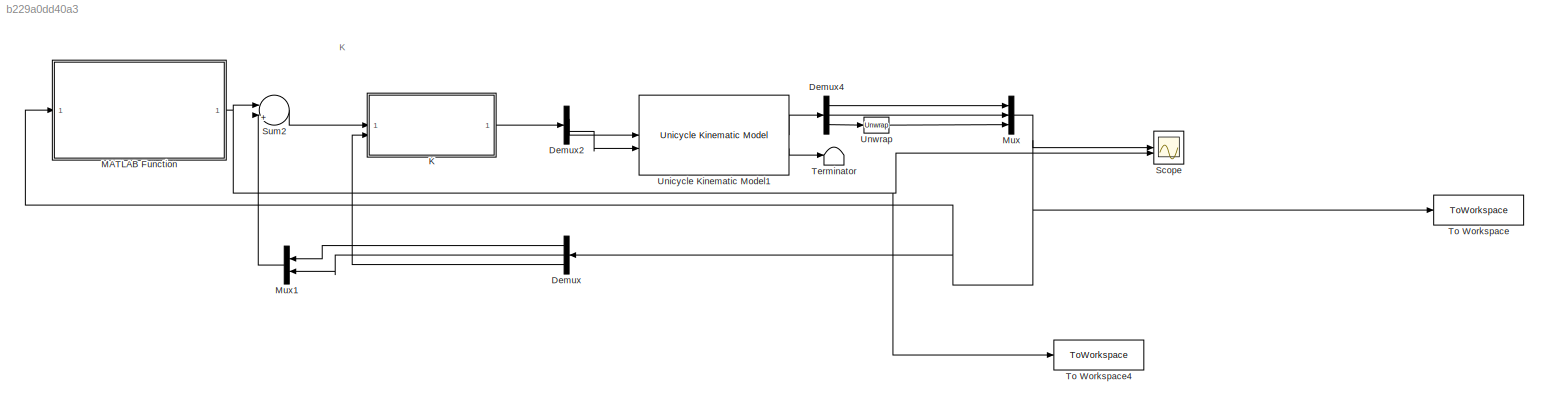
MODEL slx_b229a0dd40a3
KIND model
CONFIG AbsTol = auto
CONFIG EnableMultiTasking = off
CONFIG FixedStep = auto
CONFIG MaxStep = auto
CONFIG MinStep = auto
CONFIG RelTol = 1e-3
CONFIG SampleTimeConstraint = Unconstrained
CONFIG SolverName = VariableStepAuto
CONFIG StartTime = 0.0
CONFIG StopTime = 20
BLOCK [Demux] Demux
  NameLocation = top
  Outputs = 3
BLOCK [Demux] Demux2
  Outputs = 2
BLOCK [Demux] Demux4
  Outputs = 3
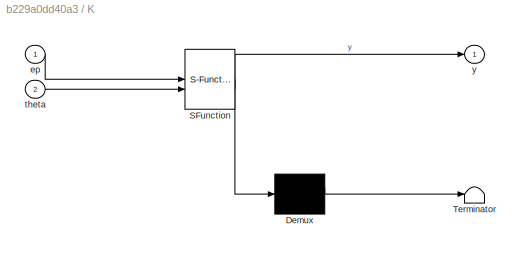
BLOCK [SubSystem] K
  ErrorFcn = Stateflow.Translate.translate
  PermitHierarchicalResolution = ExplicitOnly
  SFBlockType = MATLAB Function
  TreatAsAtomicUnit = on
BLOCK [Demux] K/ Demux 
  Outputs = 1
BLOCK [S-Function] K/ SFunction 
  EnableBusSupport = on
  FunctionName = sf_sfun
  PortCounts = [2 2]
  SFcnIsStateOwnerBlock = off
  SFunctionDeploymentMode = off
  Tag = Stateflow S-Function 19
BLOCK [Terminator] K/ Terminator 
BLOCK [Inport] K/ep
BLOCK [Inport] K/theta
  Port = 2
BLOCK [Outport] K/y
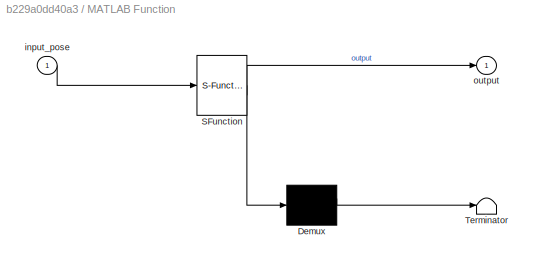
BLOCK [SubSystem] MATLAB Function
  ErrorFcn = Stateflow.Translate.translate
  PermitHierarchicalResolution = ExplicitOnly
  SFBlockType = MATLAB Function
  TreatAsAtomicUnit = on
BLOCK [Demux] MATLAB Function/ Demux 
  Outputs = 1
BLOCK [S-Function] MATLAB Function/ SFunction 
  EnableBusSupport = on
  FunctionName = sf_sfun
  PortCounts = [1 2]
  SFcnIsStateOwnerBlock = off
  SFunctionDeploymentMode = off
  Tag = Stateflow S-Function 23
BLOCK [Terminator] MATLAB Function/ Terminator 
BLOCK [Inport] MATLAB Function/input_pose
BLOCK [Outport] MATLAB Function/output
BLOCK [Mux] Mux
  DisplayOption = bar
  Inputs = 3
BLOCK [Mux] Mux1
  DisplayOption = bar
  Inputs = 2
  NameLocation = top
BLOCK [Scope] Scope
  Floating = off
  NumInputPorts = 2
  ScopeSpecificationString = Simulink.scopes.TimeScopeBlockCfg('CurrentConfiguration', extmgr.ConfigurationSet(extmgr.Configuration('Core','General UI',true),extmgr.Configuration('Core','Source UI',true),extmgr.Configuration('Sources','WiredSimulink',true),extmgr.Configuration('Visuals','Time Domain',true,'SerializedDisplays',{struct('MinYLimReal','-35.55536','MaxYLimReal','319.99823','YLabelReal','','MinYLimMag','0.00000','M...<+1471ch>
BLOCK [Sum] Sum2
  Inputs = ||+-|
BLOCK [Terminator] Terminator
BLOCK [ToWorkspace] To Workspace
  FixptAsFi = on
  MaxDataPoints = inf
  SampleTime = 0.01
  SaveFormat = Structure With Time
  VariableName = uni_state
BLOCK [ToWorkspace] To Workspace4
  FixptAsFi = on
  MaxDataPoints = inf
  SampleTime = 0.01
  SaveFormat = Structure With Time
  VariableName = reference
BLOCK [Reference] Unicycle Kinematic Model1  REF=robotmobilelib/Unicycle Kinematic Model
  SourceBlock = robotmobilelib/Unicycle Kinematic Model
  SourceType = Unicycle Kinematic Model
BLOCK [Reference] Unwrap  REF=dspsigops/Unwrap
  SourceBlock = dspsigops/Unwrap
  SourceType = Unwrap
  UserDataPersistent = on
ANNOTATION (root): K
LINE Demux2:1 -> Unicycle Kinematic Model1:1
LINE Demux2:2 -> Unicycle Kinematic Model1:2
LINE Demux4:1 -> Mux:1
LINE Demux4:2 -> Mux:2
LINE Demux4:3 -> Unwrap:1
LINE Demux:1 -> Mux1:1
LINE Demux:2 -> Mux1:2
LINE Demux:3 -> K:2
LINE K:1 -> Demux2:1
NET MATLAB Function:1 -> Scope:2, Sum2:1, To Workspace4:1
LINE Mux1:1 -> Sum2:2
NET Mux:1 -> Demux:1, MATLAB Function:1, Scope:1, To Workspace:1
LINE Sum2:1 -> K:1
LINE Unicycle Kinematic Model1:1 -> Demux4:1
LINE Unicycle Kinematic Model1:2 -> Terminator:1
LINE Unwrap:1 -> Mux:3
note: NET lines group one-source signal fan-out (src -> all destinations, sorted); 1:1 wires keep LINE
CHART K states=1 transitions=1
  STATE_LABEL 'eML_blk_kernel()'
  STATE_LABEL 'SCRIPT:\nfunction y = fcn(ep,theta)\nkv=40;\nkw=50;\nv=kv*(ep(1)*cos(theta)+ep(2)*sin(theta));\nw=kw*(atan2(-ep(2),-ep(1))+pi-theta);\ny = [v;w];\n'
CHART MATLAB Function states=1 transitions=1
  STATE_LABEL 'eML_blk_kernel()'
  STATE_LABEL 'SCRIPT:\nfunction output = check_and_update(input_pose)\n    % Input:\n    %   input_pose - a vector [x; y; theta]\n    % Output:\n    %   output - a vector [x_out; y_out]\n\n    % Define the target coordinates\n   \n    persistent target_y; % Define target_y as persistent so it can retain its value\n    persistent has_updated; % Flag to track if the update has already occurred\n    persistent target_x;\n    ...<+718ch>'
CHART  states=0 transitions=0
CHART  states=0 transitions=0
